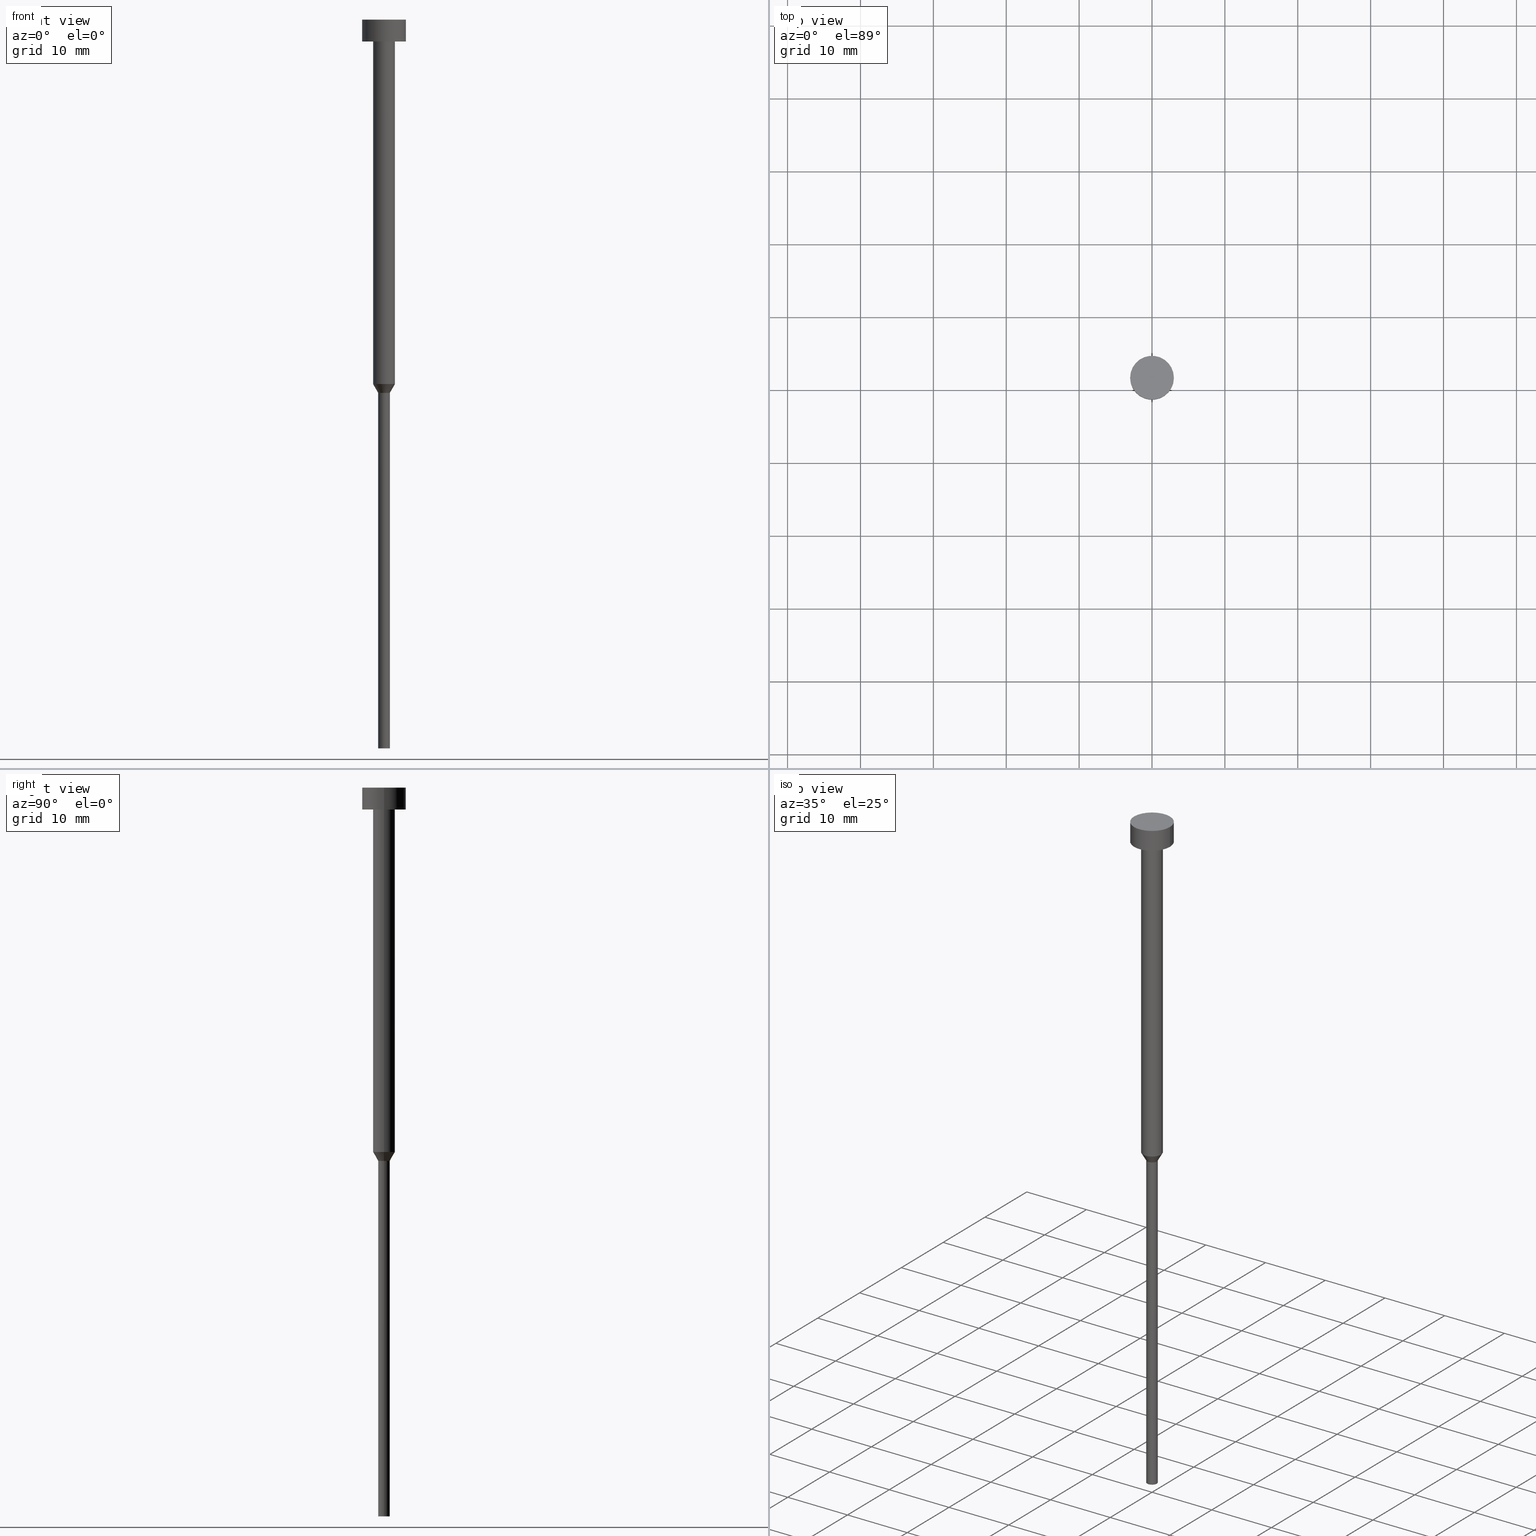
[diagram: canonical four-view strip — front | top / right | iso, engineering-drawing reading convention]
A machine part, canonical four-view strip (front | top / right | iso — engineering-drawing reading convention). The complete STEP part file that produces these views, byte-faithful:
ISO-10303-21;
HEADER;
FILE_DESCRIPTION (( 'STEP AP203' ),
    '1' );
FILE_NAME ('0eaf.STEP',
    '2023-02-13T10:56:59',
    ( '' ),
    ( '' ),
    'SwSTEP 2.0',
    'SolidWorks 2019',
    '' );
FILE_SCHEMA (( 'CONFIG_CONTROL_DESIGN' ));
ENDSEC;

DATA;
#1 = APPROVAL_PERSON_ORGANIZATION ( #34, #99, #86 ) ;
#2 = DIRECTION ( 'NONE',  ( -0.000000000000000000, -0.000000000000000000, 1.000000000000000000 ) ) ;
#3 = DIRECTION ( 'NONE',  ( -0.000000000000000000, -0.000000000000000000, 1.000000000000000000 ) ) ;
#4 = PERSON_AND_ORGANIZATION_ROLE ( 'design_supplier' ) ;
#5 = ADVANCED_FACE ( 'NONE', ( #126 ), #201, .T. ) ;
#6 = ADVANCED_FACE ( 'NONE', ( #205, #21 ), #293, .T. ) ;
#7 = EDGE_CURVE ( 'NONE', #112, #285, #269, .T. ) ;
#8 = CIRCLE ( 'NONE', #277, 3.000000000000000000 ) ;
#9 = MECHANICAL_CONTEXT ( 'NONE', #95, 'mechanical' ) ;
#10 = ORIENTED_EDGE ( 'NONE', *, *, #156, .F. ) ;
#11 = PERSON_AND_ORGANIZATION ( #262, #204 ) ;
#12 = ORIENTED_EDGE ( 'NONE', *, *, #178, .T. ) ;
#13 = APPLICATION_CONTEXT ( 'configuration controlled 3d designs of mechanical parts and assemblies' ) ;
#14 = PERSON_AND_ORGANIZATION_ROLE ( 'creator' ) ;
#15 = ORIENTED_EDGE ( 'NONE', *, *, #313, .F. ) ;
#16 = AXIS2_PLACEMENT_3D ( 'NONE', #165, #158, #268 ) ;
#17 = EDGE_LOOP ( 'NONE', ( #241, #310, #12, #249 ) ) ;
#18 = CARTESIAN_POINT ( 'NONE',  ( -1.500000000000000000, 1.836970198721029934E-16, -3.000000000000000888 ) ) ;
#19 = PRODUCT_RELATED_PRODUCT_CATEGORY ( 'detail', '', ( #342 ) ) ;
#20 = EDGE_CURVE ( 'NONE', #112, #149, #320, .T. ) ;
#21 = FACE_OUTER_BOUND ( 'NONE', #57, .T. ) ;
#22 = CARTESIAN_POINT ( 'NONE',  ( 0.000000000000000000, 0.000000000000000000, -50.00000000000000000 ) ) ;
#23 = DIRECTION ( 'NONE',  ( -0.000000000000000000, -0.000000000000000000, 1.000000000000000000 ) ) ;
#24 = ADVANCED_FACE ( 'NONE', ( #128 ), #226, .T. ) ;
#25 = DIRECTION ( 'NONE',  ( 0.000000000000000000, -0.000000000000000000, 1.000000000000000000 ) ) ;
#26 = FACE_OUTER_BOUND ( 'NONE', #109, .T. ) ;
#27 = EDGE_LOOP ( 'NONE', ( #160, #194 ) ) ;
#28 = DIRECTION ( 'NONE',  ( -0.000000000000000000, -0.000000000000000000, 1.000000000000000000 ) ) ;
#29 = CARTESIAN_POINT ( 'NONE',  ( -0.7999999999999999334, 9.797174393178826150E-17, -100.0000000000000000 ) ) ;
#30 = CIRCLE ( 'NONE', #173, 1.500000000000000000 ) ;
#31 = CYLINDRICAL_SURFACE ( 'NONE', #97, 1.500000000000000000 ) ;
#32 = CYLINDRICAL_SURFACE ( 'NONE', #250, 3.000000000000000000 ) ;
#33 = ADVANCED_FACE ( 'NONE', ( #176 ), #151, .T. ) ;
#34 = PERSON_AND_ORGANIZATION ( #262, #204 ) ;
#35 = CIRCLE ( 'NONE', #74, 0.7999999999999999334 ) ;
#36 = VECTOR ( 'NONE', #80, 1000.000000000000000 ) ;
#37 = ORIENTED_EDGE ( 'NONE', *, *, #295, .T. ) ;
#38 = ORIENTED_EDGE ( 'NONE', *, *, #7, .F. ) ;
#39 = PERSON_AND_ORGANIZATION ( #262, #204 ) ;
#40 = ORIENTED_EDGE ( 'NONE', *, *, #252, .T. ) ;
#41 = PERSON_AND_ORGANIZATION_ROLE ( 'classification_officer' ) ;
#42 = ORIENTED_EDGE ( 'NONE', *, *, #131, .T. ) ;
#43 = VECTOR ( 'NONE', #234, 1000.000000000000227 ) ;
#44 = LINE ( 'NONE', #150, #352 ) ;
#45 = CARTESIAN_POINT ( 'NONE',  ( 3.000000000000000000, 0.000000000000000000, 0.000000000000000000 ) ) ;
#46 = DIRECTION ( 'NONE',  ( 1.000000000000000000, 0.000000000000000000, 0.000000000000000000 ) ) ;
#47 = EDGE_CURVE ( 'NONE', #149, #92, #146, .T. ) ;
#48 = DIRECTION ( 'NONE',  ( -0.000000000000000000, -0.000000000000000000, 1.000000000000000000 ) ) ;
#49 = PLANE ( 'NONE',  #303 ) ;
#50 = DIRECTION ( 'NONE',  ( -0.000000000000000000, -0.000000000000000000, 1.000000000000000000 ) ) ;
#51 = CIRCLE ( 'NONE', #242, 0.8000000000000001554 ) ;
#52 = CARTESIAN_POINT ( 'NONE',  ( 0.000000000000000000, 0.000000000000000000, -100.0000000000000000 ) ) ;
#53 = DIRECTION ( 'NONE',  ( -0.000000000000000000, -0.000000000000000000, 1.000000000000000000 ) ) ;
#54 = DIRECTION ( 'NONE',  ( 1.000000000000000000, 0.000000000000000000, 0.000000000000000000 ) ) ;
#55 = CARTESIAN_POINT ( 'NONE',  ( 0.000000000000000000, 0.000000000000000000, 0.000000000000000000 ) ) ;
#56 = APPROVAL_STATUS ( 'not_yet_approved' ) ;
#57 = EDGE_LOOP ( 'NONE', ( #15, #38 ) ) ;
#58 = CALENDAR_DATE ( 2023, 13, 2 ) ;
#59 = ORIENTED_EDGE ( 'NONE', *, *, #231, .F. ) ;
#60 = ADVANCED_FACE ( 'NONE', ( #154 ), #101, .T. ) ;
#61 = CC_DESIGN_APPROVAL ( #71, ( #260 ) ) ;
#62 =( LENGTH_UNIT ( ) NAMED_UNIT ( * ) SI_UNIT ( .MILLI., .METRE. ) );
#63 = VERTEX_POINT ( 'NONE', #319 ) ;
#64 = PRODUCT_DEFINITION_FORMATION_WITH_SPECIFIED_SOURCE ( 'LIBOVOLN�', '', #342, .NOT_KNOWN. ) ;
#65 = DIRECTION ( 'NONE',  ( -0.000000000000000000, -0.000000000000000000, 1.000000000000000000 ) ) ;
#66 = CARTESIAN_POINT ( 'NONE',  ( 0.000000000000000000, 0.000000000000000000, -50.00000000000000000 ) ) ;
#67 = DIRECTION ( 'NONE',  ( 1.000000000000000000, 0.000000000000000000, 0.000000000000000000 ) ) ;
#68 = APPROVAL ( #56, 'NEUR�EN�' ) ;
#69 = DIRECTION ( 'NONE',  ( -0.000000000000000000, -0.000000000000000000, 1.000000000000000000 ) ) ;
#70 = LOCAL_TIME ( 11, 56, 59.00000000000000000, #171 ) ;
#71 = APPROVAL ( #281, 'NEUR�EN�' ) ;
#72 = DIRECTION ( 'NONE',  ( -0.000000000000000000, -0.000000000000000000, 1.000000000000000000 ) ) ;
#73 = CARTESIAN_POINT ( 'NONE',  ( 0.8000000000000000444, 0.000000000000000000, 0.000000000000000000 ) ) ;
#74 = AXIS2_PLACEMENT_3D ( 'NONE', #202, #65, #67 ) ;
#75 = CC_DESIGN_DATE_AND_TIME_ASSIGNMENT ( #191, #337, ( #260 ) ) ;
#76 = CARTESIAN_POINT ( 'NONE',  ( 0.000000000000000000, 0.000000000000000000, 0.000000000000000000 ) ) ;
#77 = EDGE_CURVE ( 'NONE', #196, #333, #35, .T. ) ;
#78 = ORIENTED_EDGE ( 'NONE', *, *, #141, .F. ) ;
#79 = AXIS2_PLACEMENT_3D ( 'NONE', #222, #346, #175 ) ;
#80 = DIRECTION ( 'NONE',  ( -0.000000000000000000, -0.000000000000000000, 1.000000000000000000 ) ) ;
#81 = DIRECTION ( 'NONE',  ( 1.000000000000000000, 0.000000000000000000, 0.000000000000000000 ) ) ;
#82 = AXIS2_PLACEMENT_3D ( 'NONE', #22, #48, #321 ) ;
#83 = CARTESIAN_POINT ( 'NONE',  ( 1.500000000000000000, 0.000000000000000000, -50.00000000000000000 ) ) ;
#84 = VECTOR ( 'NONE', #288, 1000.000000000000000 ) ;
#85 = CALENDAR_DATE ( 2023, 13, 2 ) ;
#86 = APPROVAL_ROLE ( '' ) ;
#87 = APPLICATION_PROTOCOL_DEFINITION ( 'international standard', 'config_control_design', 1994, #13 ) ;
#88 = CC_DESIGN_PERSON_AND_ORGANIZATION_ASSIGNMENT ( #343, #4, ( #64 ) ) ;
#89 = CLOSED_SHELL ( 'NONE', ( #220, #351, #5, #225, #253, #33, #24, #341, #6, #60, #124 ) ) ;
#90 = VERTEX_POINT ( 'NONE', #177 ) ;
#91 = CC_DESIGN_APPROVAL ( #99, ( #136 ) ) ;
#92 = VERTEX_POINT ( 'NONE', #259 ) ;
#93 = PERSON_AND_ORGANIZATION_ROLE ( 'design_owner' ) ;
#94 = CC_DESIGN_PERSON_AND_ORGANIZATION_ASSIGNMENT ( #139, #41, ( #136 ) ) ;
#95 = APPLICATION_CONTEXT ( 'configuration controlled 3d designs of mechanical parts and assemblies' ) ;
#96 = ORIENTED_EDGE ( 'NONE', *, *, #307, .F. ) ;
#97 = AXIS2_PLACEMENT_3D ( 'NONE', #113, #236, #168 ) ;
#98 = ORIENTED_EDGE ( 'NONE', *, *, #77, .F. ) ;
#99 = APPROVAL ( #240, 'NEUR�EN�' ) ;
#100 = DIRECTION ( 'NONE',  ( -0.000000000000000000, -0.000000000000000000, 1.000000000000000000 ) ) ;
#101 = CYLINDRICAL_SURFACE ( 'NONE', #221, 3.000000000000000000 ) ;
#102 = CARTESIAN_POINT ( 'NONE',  ( 0.000000000000000000, 0.000000000000000000, -1.836970198721029934E-16 ) ) ;
#103 = AXIS2_PLACEMENT_3D ( 'NONE', #355, #3, #138 ) ;
#104 = DIRECTION ( 'NONE',  ( 1.000000000000000000, 0.000000000000000000, 0.000000000000000000 ) ) ;
#105 = EDGE_CURVE ( 'NONE', #244, #63, #255, .T. ) ;
#106 = CARTESIAN_POINT ( 'NONE',  ( 0.000000000000000000, 0.000000000000000000, -3.000000000000000888 ) ) ;
#107 = ORIENTED_EDGE ( 'NONE', *, *, #233, .F. ) ;
#108 = DIRECTION ( 'NONE',  ( -0.000000000000000000, -0.000000000000000000, 1.000000000000000000 ) ) ;
#109 = EDGE_LOOP ( 'NONE', ( #247, #280, #308, #230 ) ) ;
#110 = CIRCLE ( 'NONE', #291, 3.000000000000000000 ) ;
#111 = CARTESIAN_POINT ( 'NONE',  ( 0.000000000000000000, 0.000000000000000000, -51.21243556529821461 ) ) ;
#112 = VERTEX_POINT ( 'NONE', #261 ) ;
#113 = CARTESIAN_POINT ( 'NONE',  ( 0.000000000000000000, 0.000000000000000000, 0.000000000000000000 ) ) ;
#114 = COORDINATED_UNIVERSAL_TIME_OFFSET ( 1, 0, .AHEAD. ) ;
#115 = CC_DESIGN_APPROVAL ( #68, ( #64 ) ) ;
#116 = CALENDAR_DATE ( 2023, 13, 2 ) ;
#117 = EDGE_LOOP ( 'NONE', ( #122, #37 ) ) ;
#118 = SECURITY_CLASSIFICATION_LEVEL ( 'unclassified' ) ;
#119 = ORIENTED_EDGE ( 'NONE', *, *, #20, .T. ) ;
#120 = AXIS2_PLACEMENT_3D ( 'NONE', #66, #23, #46 ) ;
#121 = CIRCLE ( 'NONE', #125, 1.500000000000000000 ) ;
#122 = ORIENTED_EDGE ( 'NONE', *, *, #231, .T. ) ;
#123 = CARTESIAN_POINT ( 'NONE',  ( -3.000000000000000000, 3.673940397442059868E-16, -3.673940397442059868E-16 ) ) ;
#124 = ADVANCED_FACE ( 'NONE', ( #227 ), #49, .T. ) ;
#125 = AXIS2_PLACEMENT_3D ( 'NONE', #210, #300, #54 ) ;
#126 = FACE_OUTER_BOUND ( 'NONE', #276, .T. ) ;
#127 = CARTESIAN_POINT ( 'NONE',  ( 1.500000000000000000, 0.000000000000000000, 0.000000000000000000 ) ) ;
#128 = FACE_OUTER_BOUND ( 'NONE', #140, .T. ) ;
#129 = DIRECTION ( 'NONE',  ( 1.000000000000000000, 0.000000000000000000, 0.000000000000000000 ) ) ;
#130 = AXIS2_PLACEMENT_3D ( 'NONE', #302, #28, #229 ) ;
#131 = EDGE_CURVE ( 'NONE', #333, #330, #228, .T. ) ;
#132 = DIRECTION ( 'NONE',  ( 1.000000000000000000, 0.000000000000000000, 0.000000000000000000 ) ) ;
#133 = ORIENTED_EDGE ( 'NONE', *, *, #307, .T. ) ;
#134 = DIRECTION ( 'NONE',  ( 1.000000000000000000, 0.000000000000000000, 0.000000000000000000 ) ) ;
#135 = LINE ( 'NONE', #83, #43 ) ;
#136 = SECURITY_CLASSIFICATION ( '', '', #118 ) ;
#137 = DIRECTION ( 'NONE',  ( -0.000000000000000000, -0.000000000000000000, 1.000000000000000000 ) ) ;
#138 = DIRECTION ( 'NONE',  ( 1.000000000000000000, 0.000000000000000000, 0.000000000000000000 ) ) ;
#139 = PERSON_AND_ORGANIZATION ( #262, #204 ) ;
#140 = EDGE_LOOP ( 'NONE', ( #78, #282, #298, #345 ) ) ;
#141 = EDGE_CURVE ( 'NONE', #330, #251, #44, .T. ) ;
#142 = CARTESIAN_POINT ( 'NONE',  ( 0.000000000000000000, 0.000000000000000000, 0.000000000000000000 ) ) ;
#143 = ORIENTED_EDGE ( 'NONE', *, *, #141, .T. ) ;
#144 = MANIFOLD_SOLID_BREP ( 'Rotovat1', #89 ) ;
#145 = PERSON_AND_ORGANIZATION_ROLE ( 'creator' ) ;
#146 = CIRCLE ( 'NONE', #332, 3.000000000000000000 ) ;
#147 = VERTEX_POINT ( 'NONE', #18 ) ;
#148 =( NAMED_UNIT ( * ) SI_UNIT ( $, .STERADIAN. ) SOLID_ANGLE_UNIT ( ) );
#149 = VERTEX_POINT ( 'NONE', #123 ) ;
#150 = CARTESIAN_POINT ( 'NONE',  ( -1.500000000000000000, 1.836970198721029934E-16, -50.00000000000000000 ) ) ;
#151 = CYLINDRICAL_SURFACE ( 'NONE', #283, 0.8000000000000000444 ) ;
#152 = APPROVAL_PERSON_ORGANIZATION ( #304, #68, #279 ) ;
#153 = CARTESIAN_POINT ( 'NONE',  ( 0.000000000000000000, 0.000000000000000000, 0.000000000000000000 ) ) ;
#154 = FACE_OUTER_BOUND ( 'NONE', #17, .T. ) ;
#155 = DIRECTION ( 'NONE',  ( 0.000000000000000000, 0.000000000000000000, -1.000000000000000000 ) ) ;
#156 = EDGE_CURVE ( 'NONE', #244, #251, #198, .T. ) ;
#157 = AXIS2_PLACEMENT_3D ( 'NONE', #263, #290, #223 ) ;
#158 = DIRECTION ( 'NONE',  ( -0.000000000000000000, -0.000000000000000000, 1.000000000000000000 ) ) ;
#159 = CIRCLE ( 'NONE', #103, 0.7999999999999999334 ) ;
#160 = ORIENTED_EDGE ( 'NONE', *, *, #233, .T. ) ;
#161 = FACE_OUTER_BOUND ( 'NONE', #340, .T. ) ;
#162 = PRODUCT_DEFINITION_SHAPE ( 'NONE', 'NONE',  #260 ) ;
#163 = CARTESIAN_POINT ( 'NONE',  ( 0.000000000000000000, 0.000000000000000000, -3.000000000000000888 ) ) ;
#164 = ORIENTED_EDGE ( 'NONE', *, *, #105, .F. ) ;
#165 = CARTESIAN_POINT ( 'NONE',  ( 0.000000000000000000, 0.000000000000000000, -51.21243556529821461 ) ) ;
#166 = CARTESIAN_POINT ( 'NONE',  ( -1.500000000000000000, 1.836970198721029934E-16, -50.00000000000000000 ) ) ;
#167 = CC_DESIGN_PERSON_AND_ORGANIZATION_ASSIGNMENT ( #11, #93, ( #342 ) ) ;
#168 = DIRECTION ( 'NONE',  ( 1.000000000000000000, 0.000000000000000000, 0.000000000000000000 ) ) ;
#169 = COORDINATED_UNIVERSAL_TIME_OFFSET ( 1, 0, .AHEAD. ) ;
#170 = ORIENTED_EDGE ( 'NONE', *, *, #313, .T. ) ;
#171 = COORDINATED_UNIVERSAL_TIME_OFFSET ( 1, 0, .AHEAD. ) ;
#172 = APPLICATION_PROTOCOL_DEFINITION ( 'international standard', 'config_control_design', 1994, #95 ) ;
#173 = AXIS2_PLACEMENT_3D ( 'NONE', #211, #53, #104 ) ;
#174 = CARTESIAN_POINT ( 'NONE',  ( 0.000000000000000000, 0.000000000000000000, 0.000000000000000000 ) ) ;
#175 = DIRECTION ( 'NONE',  ( 1.000000000000000000, 0.000000000000000000, 0.000000000000000000 ) ) ;
#176 = FACE_OUTER_BOUND ( 'NONE', #338, .T. ) ;
#177 = CARTESIAN_POINT ( 'NONE',  ( 0.8000000000000001554, 0.000000000000000000, -51.21243556529821461 ) ) ;
#178 = EDGE_CURVE ( 'NONE', #285, #92, #289, .T. ) ;
#179 = CARTESIAN_POINT ( 'NONE',  ( 0.000000000000000000, 0.000000000000000000, -3.673940397442059868E-16 ) ) ;
#180 = DIRECTION ( 'NONE',  ( -0.000000000000000000, -0.000000000000000000, 1.000000000000000000 ) ) ;
#181 = DIRECTION ( 'NONE',  ( 1.000000000000000000, 0.000000000000000000, 0.000000000000000000 ) ) ;
#182 = CIRCLE ( 'NONE', #235, 1.500000000000000000 ) ;
#183 = ORIENTED_EDGE ( 'NONE', *, *, #215, .F. ) ;
#184 = FACE_OUTER_BOUND ( 'NONE', #192, .T. ) ;
#185 = DIRECTION ( 'NONE',  ( -0.000000000000000000, -0.000000000000000000, 1.000000000000000000 ) ) ;
#186 = CARTESIAN_POINT ( 'NONE',  ( 0.7999999999999999334, 0.000000000000000000, -100.0000000000000000 ) ) ;
#187 = VECTOR ( 'NONE', #137, 1000.000000000000000 ) ;
#188 = EDGE_CURVE ( 'NONE', #90, #244, #135, .T. ) ;
#189 = APPROVAL_DATE_TIME ( #246, #68 ) ;
#190 = COORDINATED_UNIVERSAL_TIME_OFFSET ( 1, 0, .AHEAD. ) ;
#191 = DATE_AND_TIME ( #116, #257 ) ;
#192 = EDGE_LOOP ( 'NONE', ( #98, #183 ) ) ;
#193 = LOCAL_TIME ( 11, 56, 59.00000000000000000, #190 ) ;
#194 = ORIENTED_EDGE ( 'NONE', *, *, #47, .T. ) ;
#195 = APPROVAL_DATE_TIME ( #218, #71 ) ;
#196 = VERTEX_POINT ( 'NONE', #186 ) ;
#197 = DIRECTION ( 'NONE',  ( 1.000000000000000000, 0.000000000000000000, 0.000000000000000000 ) ) ;
#198 = CIRCLE ( 'NONE', #79, 1.500000000000000000 ) ;
#199 = CARTESIAN_POINT ( 'NONE',  ( -3.000000000000000000, 3.673940397442059868E-16, 0.000000000000000000 ) ) ;
#200 = DIRECTION ( 'NONE',  ( 1.000000000000000000, 0.000000000000000000, 0.000000000000000000 ) ) ;
#201 = CONICAL_SURFACE ( 'NONE', #120, 1.500000000000000000, 0.5235987755983007030 ) ;
#202 = CARTESIAN_POINT ( 'NONE',  ( 0.000000000000000000, 0.000000000000000000, -100.0000000000000000 ) ) ;
#203 = SHAPE_DEFINITION_REPRESENTATION ( #162, #245 ) ;
#204 = ORGANIZATION ( 'NEUR�EN�', 'NEUR�EN�', '' ) ;
#205 = FACE_BOUND ( 'NONE', #117, .T. ) ;
#206 = CARTESIAN_POINT ( 'NONE',  ( 3.000000000000000000, 0.000000000000000000, -3.000000000000000888 ) ) ;
#207 = LINE ( 'NONE', #328, #36 ) ;
#208 = ORIENTED_EDGE ( 'NONE', *, *, #323, .T. ) ;
#209 = CARTESIAN_POINT ( 'NONE',  ( 1.500000000000000000, 0.000000000000000000, -50.00000000000000000 ) ) ;
#210 = CARTESIAN_POINT ( 'NONE',  ( 0.000000000000000000, 0.000000000000000000, -3.000000000000000888 ) ) ;
#211 = CARTESIAN_POINT ( 'NONE',  ( 0.000000000000000000, 0.000000000000000000, -50.00000000000000000 ) ) ;
#212 = APPROVAL_ROLE ( '' ) ;
#213 = AXIS2_PLACEMENT_3D ( 'NONE', #142, #311, #309 ) ;
#214 = CALENDAR_DATE ( 2023, 13, 2 ) ;
#215 = EDGE_CURVE ( 'NONE', #333, #196, #159, .T. ) ;
#216 = ORIENTED_EDGE ( 'NONE', *, *, #323, .F. ) ;
#217 = VECTOR ( 'NONE', #180, 1000.000000000000000 ) ;
#218 = DATE_AND_TIME ( #85, #70 ) ;
#219 = ORIENTED_EDGE ( 'NONE', *, *, #347, .F. ) ;
#220 = ADVANCED_FACE ( 'NONE', ( #238 ), #32, .T. ) ;
#221 = AXIS2_PLACEMENT_3D ( 'NONE', #174, #72, #197 ) ;
#222 = CARTESIAN_POINT ( 'NONE',  ( 0.000000000000000000, 0.000000000000000000, -50.00000000000000000 ) ) ;
#223 = DIRECTION ( 'NONE',  ( 1.000000000000000000, 0.000000000000000000, 0.000000000000000000 ) ) ;
#224 = CARTESIAN_POINT ( 'NONE',  ( 0.000000000000000000, -3.000000000000000000, -3.000000000000000888 ) ) ;
#225 = ADVANCED_FACE ( 'NONE', ( #161 ), #331, .T. ) ;
#226 = CONICAL_SURFACE ( 'NONE', #82, 1.500000000000000000, 0.5235987755983007030 ) ;
#227 = FACE_OUTER_BOUND ( 'NONE', #27, .T. ) ;
#228 = LINE ( 'NONE', #315, #84 ) ;
#229 = DIRECTION ( 'NONE',  ( 1.000000000000000000, 0.000000000000000000, 0.000000000000000000 ) ) ;
#230 = ORIENTED_EDGE ( 'NONE', *, *, #295, .F. ) ;
#231 = EDGE_CURVE ( 'NONE', #63, #147, #182, .T. ) ;
#232 = DIRECTION ( 'NONE',  ( 1.000000000000000000, 0.000000000000000000, 0.000000000000000000 ) ) ;
#233 = EDGE_CURVE ( 'NONE', #92, #149, #8, .T. ) ;
#234 = DIRECTION ( 'NONE',  ( 0.5000000000000015543, 0.000000000000000000, 0.8660254037844377084 ) ) ;
#235 = AXIS2_PLACEMENT_3D ( 'NONE', #106, #108, #134 ) ;
#236 = DIRECTION ( 'NONE',  ( -0.000000000000000000, -0.000000000000000000, 1.000000000000000000 ) ) ;
#237 = CC_DESIGN_PERSON_AND_ORGANIZATION_ASSIGNMENT ( #39, #14, ( #64 ) ) ;
#238 = FACE_OUTER_BOUND ( 'NONE', #348, .T. ) ;
#239 = AXIS2_PLACEMENT_3D ( 'NONE', #224, #155, #349 ) ;
#240 = APPROVAL_STATUS ( 'not_yet_approved' ) ;
#241 = ORIENTED_EDGE ( 'NONE', *, *, #20, .F. ) ;
#242 = AXIS2_PLACEMENT_3D ( 'NONE', #111, #329, #81 ) ;
#243 = CC_DESIGN_SECURITY_CLASSIFICATION ( #136, ( #64 ) ) ;
#244 = VERTEX_POINT ( 'NONE', #209 ) ;
#245 = ADVANCED_BREP_SHAPE_REPRESENTATION ( '0eaf', ( #144, #213 ), #287 ) ;
#246 = DATE_AND_TIME ( #284, #265 ) ;
#247 = ORIENTED_EDGE ( 'NONE', *, *, #252, .F. ) ;
#248 = PERSON_AND_ORGANIZATION ( #262, #204 ) ;
#249 = ORIENTED_EDGE ( 'NONE', *, *, #47, .F. ) ;
#250 = AXIS2_PLACEMENT_3D ( 'NONE', #55, #50, #267 ) ;
#251 = VERTEX_POINT ( 'NONE', #166 ) ;
#252 = EDGE_CURVE ( 'NONE', #251, #147, #207, .T. ) ;
#253 = ADVANCED_FACE ( 'NONE', ( #184 ), #299, .T. ) ;
#254 = DIRECTION ( 'NONE',  ( -0.5000000000000015543, 6.123233995736783292E-17, 0.8660254037844377084 ) ) ;
#255 = LINE ( 'NONE', #127, #325 ) ;
#256 = CC_DESIGN_DATE_AND_TIME_ASSIGNMENT ( #306, #273, ( #136 ) ) ;
#257 = LOCAL_TIME ( 11, 56, 59.00000000000000000, #169 ) ;
#258 = APPROVAL_DATE_TIME ( #318, #99 ) ;
#259 = CARTESIAN_POINT ( 'NONE',  ( 3.000000000000000000, 0.000000000000000000, -3.673940397442059868E-16 ) ) ;
#260 = PRODUCT_DEFINITION ( 'NEZN�M�', '', #64, #264 ) ;
#261 = CARTESIAN_POINT ( 'NONE',  ( -3.000000000000000000, 3.673940397442059868E-16, -3.000000000000000888 ) ) ;
#262 = PERSON ( 'NEUR�EN�', 'NEUR�EN�', 'NEUR�EN�', ('NEUR�EN�'), ('NEUR�EN�'), ('NEUR�EN�') ) ;
#263 = CARTESIAN_POINT ( 'NONE',  ( 0.000000000000000000, 0.000000000000000000, -3.000000000000000888 ) ) ;
#264 = DESIGN_CONTEXT ( 'detailed design', #13, 'design' ) ;
#265 = LOCAL_TIME ( 11, 56, 59.00000000000000000, #339 ) ;
#266 = DIRECTION ( 'NONE',  ( 0.000000000000000000, 0.000000000000000000, -1.000000000000000000 ) ) ;
#267 = DIRECTION ( 'NONE',  ( 1.000000000000000000, 0.000000000000000000, 0.000000000000000000 ) ) ;
#268 = DIRECTION ( 'NONE',  ( 1.000000000000000000, 0.000000000000000000, 0.000000000000000000 ) ) ;
#269 = CIRCLE ( 'NONE', #157, 3.000000000000000000 ) ;
#270 = FACE_OUTER_BOUND ( 'NONE', #312, .T. ) ;
#271 = CIRCLE ( 'NONE', #16, 0.8000000000000001554 ) ;
#272 = DIRECTION ( 'NONE',  ( -1.000000000000000000, 0.000000000000000000, -0.000000000000000000 ) ) ;
#273 = DATE_TIME_ROLE ( 'classification_date' ) ;
#274 = ORIENTED_EDGE ( 'NONE', *, *, #131, .F. ) ;
#275 =( NAMED_UNIT ( * ) PLANE_ANGLE_UNIT ( ) SI_UNIT ( $, .RADIAN. ) );
#276 = EDGE_LOOP ( 'NONE', ( #208, #143, #10, #344 ) ) ;
#277 = AXIS2_PLACEMENT_3D ( 'NONE', #297, #185, #232 ) ;
#278 = EDGE_CURVE ( 'NONE', #251, #244, #30, .T. ) ;
#279 = APPROVAL_ROLE ( '' ) ;
#280 = ORIENTED_EDGE ( 'NONE', *, *, #278, .T. ) ;
#281 = APPROVAL_STATUS ( 'not_yet_approved' ) ;
#282 = ORIENTED_EDGE ( 'NONE', *, *, #347, .T. ) ;
#283 = AXIS2_PLACEMENT_3D ( 'NONE', #153, #69, #200 ) ;
#284 = CALENDAR_DATE ( 2023, 13, 2 ) ;
#285 = VERTEX_POINT ( 'NONE', #206 ) ;
#286 = APPROVAL_PERSON_ORGANIZATION ( #248, #71, #212 ) ;
#287 =( GEOMETRIC_REPRESENTATION_CONTEXT ( 3 ) GLOBAL_UNCERTAINTY_ASSIGNED_CONTEXT ( ( #322 ) ) GLOBAL_UNIT_ASSIGNED_CONTEXT ( ( #62, #275, #148 ) ) REPRESENTATION_CONTEXT ( 'NONE', 'WORKASPACE' ) );
#288 = DIRECTION ( 'NONE',  ( -0.000000000000000000, -0.000000000000000000, 1.000000000000000000 ) ) ;
#289 = LINE ( 'NONE', #45, #187 ) ;
#290 = DIRECTION ( 'NONE',  ( -0.000000000000000000, -0.000000000000000000, 1.000000000000000000 ) ) ;
#291 = AXIS2_PLACEMENT_3D ( 'NONE', #163, #294, #132 ) ;
#292 = DIRECTION ( 'NONE',  ( -0.000000000000000000, -0.000000000000000000, 1.000000000000000000 ) ) ;
#293 = PLANE ( 'NONE',  #239 ) ;
#294 = DIRECTION ( 'NONE',  ( -0.000000000000000000, -0.000000000000000000, 1.000000000000000000 ) ) ;
#295 = EDGE_CURVE ( 'NONE', #147, #63, #121, .T. ) ;
#296 = LOCAL_TIME ( 11, 56, 59.00000000000000000, #114 ) ;
#297 = CARTESIAN_POINT ( 'NONE',  ( 0.000000000000000000, 0.000000000000000000, -3.673940397442059868E-16 ) ) ;
#298 = ORIENTED_EDGE ( 'NONE', *, *, #188, .T. ) ;
#299 = PLANE ( 'NONE',  #316 ) ;
#300 = DIRECTION ( 'NONE',  ( -0.000000000000000000, -0.000000000000000000, 1.000000000000000000 ) ) ;
#301 = VECTOR ( 'NONE', #100, 1000.000000000000000 ) ;
#302 = CARTESIAN_POINT ( 'NONE',  ( 0.000000000000000000, 0.000000000000000000, 0.000000000000000000 ) ) ;
#303 = AXIS2_PLACEMENT_3D ( 'NONE', #102, #25, #129 ) ;
#304 = PERSON_AND_ORGANIZATION ( #262, #204 ) ;
#305 = ORIENTED_EDGE ( 'NONE', *, *, #215, .T. ) ;
#306 = DATE_AND_TIME ( #214, #296 ) ;
#307 = EDGE_CURVE ( 'NONE', #196, #90, #324, .T. ) ;
#308 = ORIENTED_EDGE ( 'NONE', *, *, #105, .T. ) ;
#309 = DIRECTION ( 'NONE',  ( 1.000000000000000000, 0.000000000000000000, 0.000000000000000000 ) ) ;
#310 = ORIENTED_EDGE ( 'NONE', *, *, #7, .T. ) ;
#311 = DIRECTION ( 'NONE',  ( 0.000000000000000000, 0.000000000000000000, 1.000000000000000000 ) ) ;
#312 = EDGE_LOOP ( 'NONE', ( #335, #40, #59, #164 ) ) ;
#313 = EDGE_CURVE ( 'NONE', #285, #112, #110, .T. ) ;
#314 = PERSON_AND_ORGANIZATION ( #262, #204 ) ;
#315 = CARTESIAN_POINT ( 'NONE',  ( -0.8000000000000000444, 9.797174393178826150E-17, 0.000000000000000000 ) ) ;
#316 = AXIS2_PLACEMENT_3D ( 'NONE', #52, #266, #272 ) ;
#317 = DIRECTION ( 'NONE',  ( -0.000000000000000000, -0.000000000000000000, 1.000000000000000000 ) ) ;
#318 = DATE_AND_TIME ( #58, #193 ) ;
#319 = CARTESIAN_POINT ( 'NONE',  ( 1.500000000000000000, 0.000000000000000000, -3.000000000000000888 ) ) ;
#320 = LINE ( 'NONE', #199, #301 ) ;
#321 = DIRECTION ( 'NONE',  ( 1.000000000000000000, 0.000000000000000000, 0.000000000000000000 ) ) ;
#322 = UNCERTAINTY_MEASURE_WITH_UNIT (LENGTH_MEASURE( 1.000000000000000082E-05 ), #62, 'distance_accuracy_value', 'NONE');
#323 = EDGE_CURVE ( 'NONE', #90, #330, #271, .T. ) ;
#324 = LINE ( 'NONE', #73, #217 ) ;
#325 = VECTOR ( 'NONE', #292, 1000.000000000000000 ) ;
#326 = CARTESIAN_POINT ( 'NONE',  ( -0.8000000000000002665, 9.797174393178828616E-17, -51.21243556529821461 ) ) ;
#327 = ORIENTED_EDGE ( 'NONE', *, *, #178, .F. ) ;
#328 = CARTESIAN_POINT ( 'NONE',  ( -1.500000000000000000, 1.836970198721029934E-16, 0.000000000000000000 ) ) ;
#329 = DIRECTION ( 'NONE',  ( -0.000000000000000000, -0.000000000000000000, 1.000000000000000000 ) ) ;
#330 = VERTEX_POINT ( 'NONE', #326 ) ;
#331 = CYLINDRICAL_SURFACE ( 'NONE', #130, 0.8000000000000000444 ) ;
#332 = AXIS2_PLACEMENT_3D ( 'NONE', #179, #317, #353 ) ;
#333 = VERTEX_POINT ( 'NONE', #29 ) ;
#334 = AXIS2_PLACEMENT_3D ( 'NONE', #76, #2, #181 ) ;
#335 = ORIENTED_EDGE ( 'NONE', *, *, #156, .T. ) ;
#336 = CC_DESIGN_PERSON_AND_ORGANIZATION_ASSIGNMENT ( #314, #145, ( #260 ) ) ;
#337 = DATE_TIME_ROLE ( 'creation_date' ) ;
#338 = EDGE_LOOP ( 'NONE', ( #274, #305, #133, #219 ) ) ;
#339 = COORDINATED_UNIVERSAL_TIME_OFFSET ( 1, 0, .AHEAD. ) ;
#340 = EDGE_LOOP ( 'NONE', ( #350, #42, #216, #96 ) ) ;
#341 = ADVANCED_FACE ( 'NONE', ( #26 ), #354, .T. ) ;
#342 = PRODUCT ( '0eaf', '0eaf', '', ( #9 ) ) ;
#343 = PERSON_AND_ORGANIZATION ( #262, #204 ) ;
#344 = ORIENTED_EDGE ( 'NONE', *, *, #188, .F. ) ;
#345 = ORIENTED_EDGE ( 'NONE', *, *, #278, .F. ) ;
#346 = DIRECTION ( 'NONE',  ( -0.000000000000000000, -0.000000000000000000, 1.000000000000000000 ) ) ;
#347 = EDGE_CURVE ( 'NONE', #330, #90, #51, .T. ) ;
#348 = EDGE_LOOP ( 'NONE', ( #170, #119, #107, #327 ) ) ;
#349 = DIRECTION ( 'NONE',  ( -1.000000000000000000, 0.000000000000000000, -0.000000000000000000 ) ) ;
#350 = ORIENTED_EDGE ( 'NONE', *, *, #77, .T. ) ;
#351 = ADVANCED_FACE ( 'NONE', ( #270 ), #31, .T. ) ;
#352 = VECTOR ( 'NONE', #254, 1000.000000000000227 ) ;
#353 = DIRECTION ( 'NONE',  ( 1.000000000000000000, 0.000000000000000000, 0.000000000000000000 ) ) ;
#354 = CYLINDRICAL_SURFACE ( 'NONE', #334, 1.500000000000000000 ) ;
#355 = CARTESIAN_POINT ( 'NONE',  ( 0.000000000000000000, 0.000000000000000000, -100.0000000000000000 ) ) ;
ENDSEC;
END-ISO-10303-21;
